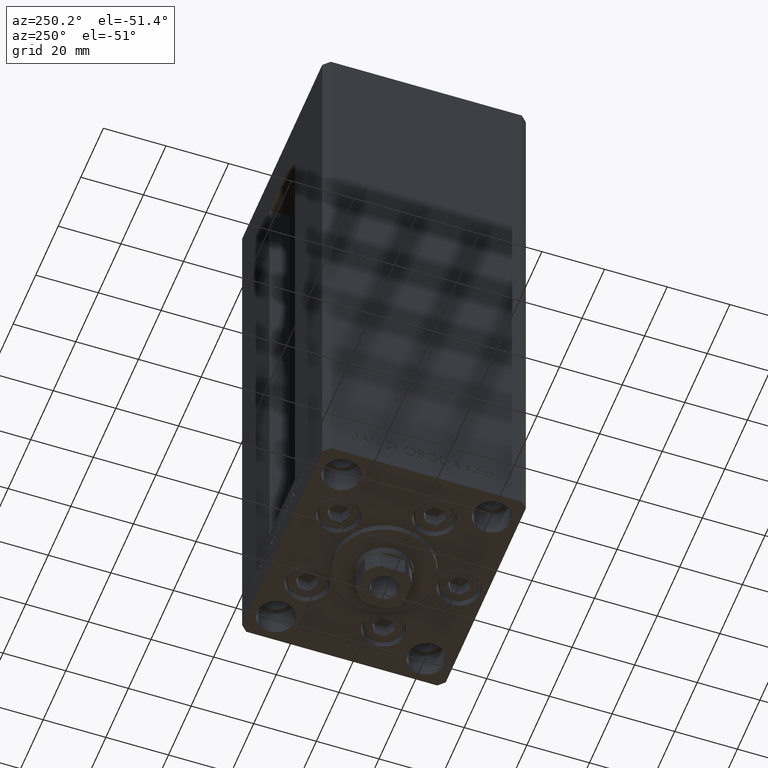
[diagram: clean part render]
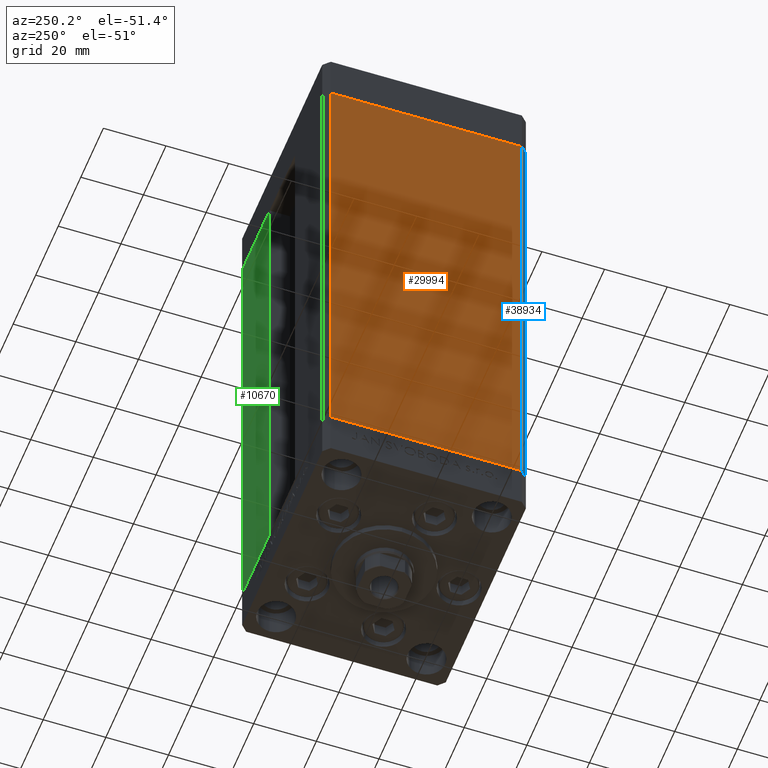
[diagram: same view with three faces highlighted in distinct colors, each labeled with its STEP entity id]
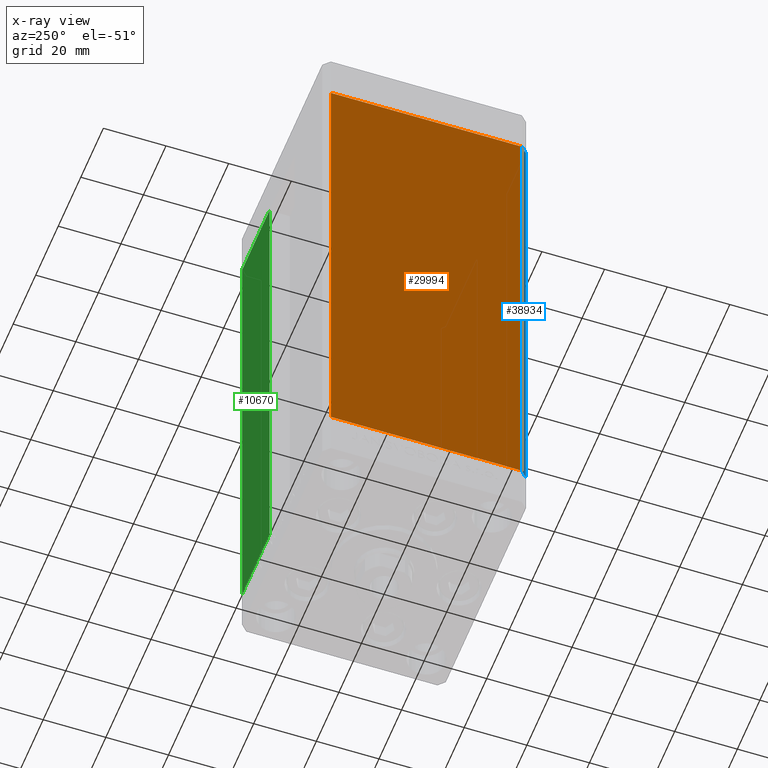
[diagram: x-ray of the same camera — body ghosted, the three highlighted faces saturated]
A machine part, auxiliary view with three faces highlighted in distinct colors.
The next image is the same camera in x-ray (body ghosted, the three faces saturated) — at least one of them is partly hidden behind the body in this view.
Their STEP definitions:

[orange] entity #29994 — the highlighted planar face has unit normal (1, 0, 0).
#892 = EDGE_CURVE ( 'NONE', #11343, #38051, #31921, .T. ) ;
#1826 = VECTOR ( 'NONE', #28448, 1000.000000000000000 ) ;
#1976 = VECTOR ( 'NONE', #48126, 1000.000000000000000 ) ;
#2196 = DIRECTION ( 'NONE',  ( -0.000000000000000000, -0.000000000000000000, -1.000000000000000000 ) ) ;
#5917 = ORIENTED_EDGE ( 'NONE', *, *, #30685, .F. ) ;
#5920 = CARTESIAN_POINT ( 'NONE',  ( -37.50000000000000711, 30.50000000000000000, 156.0000000000000000 ) ) ;
#6227 = VERTEX_POINT ( 'NONE', #49179 ) ;
#6402 = FACE_OUTER_BOUND ( 'NONE', #30147, .T. ) ;
#8927 = ORIENTED_EDGE ( 'NONE', *, *, #892, .T. ) ;
#11343 = VERTEX_POINT ( 'NONE', #15779 ) ;
#15779 = CARTESIAN_POINT ( 'NONE',  ( -37.50000000000000711, 30.50000000000000000, 0.000000000000000000 ) ) ;
#17674 = DIRECTION ( 'NONE',  ( -0.000000000000000000, -0.000000000000000000, -1.000000000000000000 ) ) ;
#17930 = CARTESIAN_POINT ( 'NONE',  ( -37.49999999999999289, -30.50000000000000000, 0.000000000000000000 ) ) ;
#18730 = LINE ( 'NONE', #40656, #1976 ) ;
#21855 = DIRECTION ( 'NONE',  ( 1.000000000000000000, 2.275047181608927644E-16, -0.000000000000000000 ) ) ;
#27115 = ORIENTED_EDGE ( 'NONE', *, *, #27414, .T. ) ;
#27338 = VECTOR ( 'NONE', #2196, 1000.000000000000000 ) ;
#27414 = EDGE_CURVE ( 'NONE', #31399, #11343, #27707, .T. ) ;
#27707 = LINE ( 'NONE', #33093, #27338 ) ;
#28448 = DIRECTION ( 'NONE',  ( 2.275047181608927644E-16, -1.000000000000000000, 0.000000000000000000 ) ) ;
#28663 = LINE ( 'NONE', #43847, #41051 ) ;
#29994 = ADVANCED_FACE ( 'NONE', ( #6402 ), #32808, .F. ) ;
#30147 = EDGE_LOOP ( 'NONE', ( #8927, #30615, #5917, #27115 ) ) ;
#30615 = ORIENTED_EDGE ( 'NONE', *, *, #37129, .F. ) ;
#30685 = EDGE_CURVE ( 'NONE', #31399, #6227, #18730, .T. ) ;
#31399 = VERTEX_POINT ( 'NONE', #34243 ) ;
#31921 = LINE ( 'NONE', #47365, #1826 ) ;
#32808 = PLANE ( 'NONE',  #41704 ) ;
#33093 = CARTESIAN_POINT ( 'NONE',  ( -37.50000000000000711, 30.50000000000000000, 156.0000000000000000 ) ) ;
#34243 = CARTESIAN_POINT ( 'NONE',  ( -37.50000000000000711, 30.50000000000000000, 156.0000000000000000 ) ) ;
#37129 = EDGE_CURVE ( 'NONE', #6227, #38051, #28663, .T. ) ;
#38051 = VERTEX_POINT ( 'NONE', #17930 ) ;
#40656 = CARTESIAN_POINT ( 'NONE',  ( -37.50000000000000711, 30.50000000000000000, 156.0000000000000000 ) ) ;
#41051 = VECTOR ( 'NONE', #17674, 1000.000000000000000 ) ;
#41704 = AXIS2_PLACEMENT_3D ( 'NONE', #5920, #21855, #47521 ) ;
#43847 = CARTESIAN_POINT ( 'NONE',  ( -37.49999999999999289, -30.50000000000000000, 156.0000000000000000 ) ) ;
#47365 = CARTESIAN_POINT ( 'NONE',  ( -37.50000000000000711, 30.50000000000000000, 0.000000000000000000 ) ) ;
#47521 = DIRECTION ( 'NONE',  ( -2.275047181608927644E-16, 1.000000000000000000, 0.000000000000000000 ) ) ;
#48126 = DIRECTION ( 'NONE',  ( 2.275047181608927644E-16, -1.000000000000000000, 0.000000000000000000 ) ) ;
#49179 = CARTESIAN_POINT ( 'NONE',  ( -37.49999999999999289, -30.50000000000000000, 156.0000000000000000 ) ) ;

[blue] entity #38934 — the highlighted planar face has unit normal (0.7071, 0.7071, 0).
#2420 = VERTEX_POINT ( 'NONE', #46507 ) ;
#2854 = DIRECTION ( 'NONE',  ( -0.000000000000000000, -0.000000000000000000, -1.000000000000000000 ) ) ;
#3577 = ORIENTED_EDGE ( 'NONE', *, *, #37129, .T. ) ;
#5036 = ORIENTED_EDGE ( 'NONE', *, *, #26126, .F. ) ;
#5586 = EDGE_CURVE ( 'NONE', #6227, #2420, #30196, .T. ) ;
#6227 = VERTEX_POINT ( 'NONE', #49179 ) ;
#6853 = DIRECTION ( 'NONE',  ( 0.7071067811865475727, 0.7071067811865475727, -0.000000000000000000 ) ) ;
#7007 = CARTESIAN_POINT ( 'NONE',  ( -37.49999999999999289, -30.50000000000000000, 0.000000000000000000 ) ) ;
#8423 = ORIENTED_EDGE ( 'NONE', *, *, #32650, .T. ) ;
#9912 = EDGE_LOOP ( 'NONE', ( #8423, #5036, #31847, #3577 ) ) ;
#10046 = AXIS2_PLACEMENT_3D ( 'NONE', #48439, #6853, #29530 ) ;
#10951 = VERTEX_POINT ( 'NONE', #17614 ) ;
#17614 = CARTESIAN_POINT ( 'NONE',  ( -35.49999999999999289, -32.50000000000000000, 0.000000000000000000 ) ) ;
#17674 = DIRECTION ( 'NONE',  ( -0.000000000000000000, -0.000000000000000000, -1.000000000000000000 ) ) ;
#17930 = CARTESIAN_POINT ( 'NONE',  ( -37.49999999999999289, -30.50000000000000000, 0.000000000000000000 ) ) ;
#21014 = VECTOR ( 'NONE', #42132, 1000.000000000000114 ) ;
#21825 = VECTOR ( 'NONE', #48842, 1000.000000000000114 ) ;
#22055 = FACE_OUTER_BOUND ( 'NONE', #9912, .T. ) ;
#26126 = EDGE_CURVE ( 'NONE', #2420, #10951, #40482, .T. ) ;
#28663 = LINE ( 'NONE', #43847, #41051 ) ;
#29530 = DIRECTION ( 'NONE',  ( -0.7071067811865474617, 0.7071067811865474617, 0.000000000000000000 ) ) ;
#30196 = LINE ( 'NONE', #30437, #21014 ) ;
#30437 = CARTESIAN_POINT ( 'NONE',  ( -37.49999999999999289, -30.50000000000000000, 156.0000000000000000 ) ) ;
#31847 = ORIENTED_EDGE ( 'NONE', *, *, #5586, .F. ) ;
#32650 = EDGE_CURVE ( 'NONE', #38051, #10951, #48595, .T. ) ;
#32839 = VECTOR ( 'NONE', #2854, 1000.000000000000000 ) ;
#33016 = CARTESIAN_POINT ( 'NONE',  ( -35.49999999999999289, -32.50000000000000000, 156.0000000000000000 ) ) ;
#37129 = EDGE_CURVE ( 'NONE', #6227, #38051, #28663, .T. ) ;
#38051 = VERTEX_POINT ( 'NONE', #17930 ) ;
#38934 = ADVANCED_FACE ( 'NONE', ( #22055 ), #42628, .F. ) ;
#40482 = LINE ( 'NONE', #33016, #32839 ) ;
#41051 = VECTOR ( 'NONE', #17674, 1000.000000000000000 ) ;
#42132 = DIRECTION ( 'NONE',  ( 0.7071067811865474617, -0.7071067811865474617, 0.000000000000000000 ) ) ;
#42628 = PLANE ( 'NONE',  #10046 ) ;
#43847 = CARTESIAN_POINT ( 'NONE',  ( -37.49999999999999289, -30.50000000000000000, 156.0000000000000000 ) ) ;
#46507 = CARTESIAN_POINT ( 'NONE',  ( -35.49999999999999289, -32.50000000000000000, 156.0000000000000000 ) ) ;
#48439 = CARTESIAN_POINT ( 'NONE',  ( -37.49999999999999289, -30.50000000000000000, 156.0000000000000000 ) ) ;
#48595 = LINE ( 'NONE', #7007, #21825 ) ;
#48842 = DIRECTION ( 'NONE',  ( 0.7071067811865474617, -0.7071067811865474617, 0.000000000000000000 ) ) ;
#49179 = CARTESIAN_POINT ( 'NONE',  ( -37.49999999999999289, -30.50000000000000000, 156.0000000000000000 ) ) ;

[green] entity #10670 — the highlighted planar face has unit normal (0, -1, 0).
#405 = CARTESIAN_POINT ( 'NONE',  ( 11.25000000000000178, 32.49999999999999289, 0.000000000000000000 ) ) ;
#2739 = VECTOR ( 'NONE', #38765, 1000.000000000000000 ) ;
#5011 = CARTESIAN_POINT ( 'NONE',  ( 11.24999999999999467, 32.49999999999999289, 156.0000000000000000 ) ) ;
#5609 = LINE ( 'NONE', #13995, #21162 ) ;
#6252 = EDGE_CURVE ( 'NONE', #20022, #16510, #25769, .T. ) ;
#6600 = ORIENTED_EDGE ( 'NONE', *, *, #6252, .T. ) ;
#7060 = EDGE_CURVE ( 'NONE', #26036, #20022, #23593, .T. ) ;
#7204 = PLANE ( 'NONE',  #43489 ) ;
#10370 = EDGE_CURVE ( 'NONE', #16510, #20585, #5609, .T. ) ;
#10658 = VECTOR ( 'NONE', #29769, 1000.000000000000000 ) ;
#10670 = ADVANCED_FACE ( 'NONE', ( #14186 ), #7204, .F. ) ;
#13995 = CARTESIAN_POINT ( 'NONE',  ( 35.50000000000000000, 32.49999999999999289, 156.0000000000000000 ) ) ;
#14186 = FACE_OUTER_BOUND ( 'NONE', #37266, .T. ) ;
#16510 = VERTEX_POINT ( 'NONE', #38732 ) ;
#17815 = CARTESIAN_POINT ( 'NONE',  ( 11.25000000000000178, 32.49999999999999289, 0.000000000000000000 ) ) ;
#18411 = DIRECTION ( 'NONE',  ( 0.000000000000000000, -1.000000000000000000, 0.000000000000000000 ) ) ;
#20022 = VERTEX_POINT ( 'NONE', #5011 ) ;
#20585 = VERTEX_POINT ( 'NONE', #25234 ) ;
#21162 = VECTOR ( 'NONE', #29199, 1000.000000000000000 ) ;
#23593 = LINE ( 'NONE', #405, #2739 ) ;
#25234 = CARTESIAN_POINT ( 'NONE',  ( 35.50000000000000000, 32.49999999999999289, 0.000000000000000000 ) ) ;
#25329 = DIRECTION ( 'NONE',  ( -1.000000000000000000, 0.000000000000000000, 0.000000000000000000 ) ) ;
#25769 = LINE ( 'NONE', #48684, #10658 ) ;
#26036 = VERTEX_POINT ( 'NONE', #17815 ) ;
#29199 = DIRECTION ( 'NONE',  ( -0.000000000000000000, -0.000000000000000000, -1.000000000000000000 ) ) ;
#29276 = EDGE_CURVE ( 'NONE', #20585, #26036, #43290, .T. ) ;
#29769 = DIRECTION ( 'NONE',  ( 1.000000000000000000, 0.000000000000000000, 0.000000000000000000 ) ) ;
#30128 = CARTESIAN_POINT ( 'NONE',  ( -11.25000000000000178, 32.49999999999999289, 156.0000000000000000 ) ) ;
#37266 = EDGE_LOOP ( 'NONE', ( #45699, #37576, #6600, #45565 ) ) ;
#37576 = ORIENTED_EDGE ( 'NONE', *, *, #7060, .T. ) ;
#37578 = DIRECTION ( 'NONE',  ( 0.000000000000000000, -0.000000000000000000, -1.000000000000000000 ) ) ;
#38732 = CARTESIAN_POINT ( 'NONE',  ( 35.50000000000000000, 32.49999999999999289, 156.0000000000000000 ) ) ;
#38765 = DIRECTION ( 'NONE',  ( -0.000000000000000000, -0.000000000000000000, 1.000000000000000000 ) ) ;
#39545 = CARTESIAN_POINT ( 'NONE',  ( -11.25000000000000178, 32.49999999999999289, 0.000000000000000000 ) ) ;
#43290 = LINE ( 'NONE', #39545, #43312 ) ;
#43312 = VECTOR ( 'NONE', #25329, 1000.000000000000000 ) ;
#43489 = AXIS2_PLACEMENT_3D ( 'NONE', #30128, #18411, #37578 ) ;
#45565 = ORIENTED_EDGE ( 'NONE', *, *, #10370, .T. ) ;
#45699 = ORIENTED_EDGE ( 'NONE', *, *, #29276, .T. ) ;
#48684 = CARTESIAN_POINT ( 'NONE',  ( -11.25000000000000178, 32.49999999999999289, 156.0000000000000000 ) ) ;